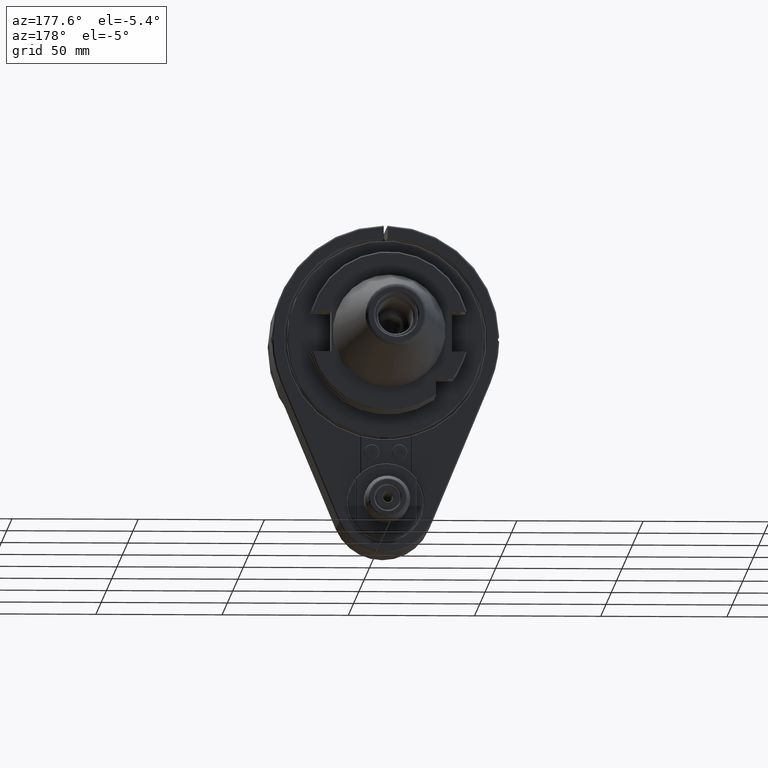
[diagram: clean part render]
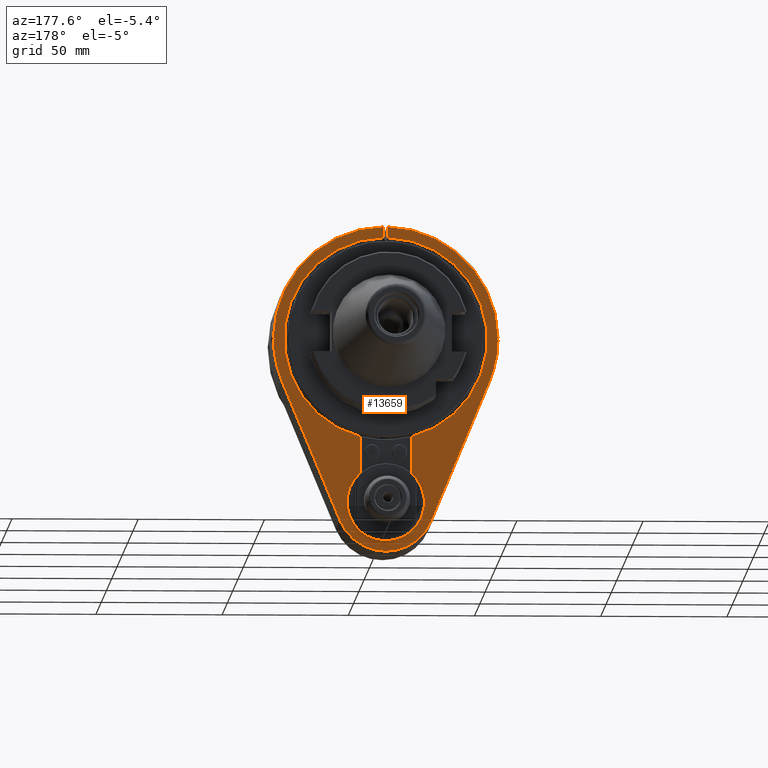
[diagram: same view with one face highlighted and labeled with its STEP entity id]
A machine part, auxiliary view. The second image highlights one B-rep face of the part: STEP entity #13659.
In plain terms, the highlighted planar face has unit normal (0, 1, 0).
Its self-contained STEP definition (entity closure, byte-faithful):
#783=CIRCLE('',#14669,44.49997422302);
#785=CIRCLE('',#14672,44.50060196107);
#786=CIRCLE('',#14673,44.49995139312);
#787=CIRCLE('',#14674,40.19996696382);
#788=CIRCLE('',#14675,15.34995496794);
#789=CIRCLE('',#14676,40.19996600925);
#790=CIRCLE('',#14677,44.5006095081);
#791=CIRCLE('',#14678,19.49970659949);
#1428=FACE_OUTER_BOUND('',#2241,.T.);
#2241=EDGE_LOOP('',(#9351,#9352,#9353,#9354,#9355,#9356,#9357,#9358,#9359,
#9360,#9361,#9362,#9363,#9364,#9365,#9366,#9367,#9368));
#3270=LINE('',#20657,#4469);
#3276=LINE('',#20695,#4475);
#3277=LINE('',#20697,#4476);
#3278=LINE('',#20701,#4477);
#3279=LINE('',#20705,#4478);
#3280=LINE('',#20709,#4479);
#3281=LINE('',#20712,#4480);
#3282=LINE('',#20714,#4481);
#3283=LINE('',#20718,#4482);
#3284=LINE('',#20721,#4483);
#4469=VECTOR('',#16404,10.);
#4475=VECTOR('',#16424,10.);
#4476=VECTOR('',#16425,10.);
#4477=VECTOR('',#16428,10.);
#4478=VECTOR('',#16431,10.);
#4479=VECTOR('',#16434,10.);
#4480=VECTOR('',#16437,10.);
#4481=VECTOR('',#16438,10.);
#4482=VECTOR('',#16441,10.);
#4483=VECTOR('',#16444,10.);
#5816=VERTEX_POINT('',#20651);
#5818=VERTEX_POINT('',#20656);
#5827=VERTEX_POINT('',#20683);
#5829=VERTEX_POINT('',#20691);
#5830=VERTEX_POINT('',#20692);
#5831=VERTEX_POINT('',#20694);
#5832=VERTEX_POINT('',#20696);
#5833=VERTEX_POINT('',#20698);
#5834=VERTEX_POINT('',#20700);
#5835=VERTEX_POINT('',#20702);
#5836=VERTEX_POINT('',#20704);
#5837=VERTEX_POINT('',#20706);
#5838=VERTEX_POINT('',#20708);
#5839=VERTEX_POINT('',#20711);
#5840=VERTEX_POINT('',#20713);
#5841=VERTEX_POINT('',#20715);
#5842=VERTEX_POINT('',#20717);
#5843=VERTEX_POINT('',#20719);
#7203=EDGE_CURVE('',#5818,#5816,#3270,.T.);
#7214=EDGE_CURVE('',#5827,#5816,#783,.T.);
#7217=EDGE_CURVE('',#5829,#5830,#785,.T.);
#7218=EDGE_CURVE('',#5831,#5829,#3276,.T.);
#7219=EDGE_CURVE('',#5832,#5831,#3277,.T.);
#7220=EDGE_CURVE('',#5833,#5832,#786,.T.);
#7221=EDGE_CURVE('',#5834,#5833,#3278,.T.);
#7222=EDGE_CURVE('',#5835,#5834,#787,.T.);
#7223=EDGE_CURVE('',#5836,#5835,#3279,.T.);
#7224=EDGE_CURVE('',#5837,#5836,#788,.T.);
#7225=EDGE_CURVE('',#5838,#5837,#3280,.T.);
#7226=EDGE_CURVE('',#5818,#5838,#789,.T.);
#7227=EDGE_CURVE('',#5839,#5827,#3281,.T.);
#7228=EDGE_CURVE('',#5840,#5839,#3282,.T.);
#7229=EDGE_CURVE('',#5841,#5840,#790,.T.);
#7230=EDGE_CURVE('',#5842,#5841,#3283,.T.);
#7231=EDGE_CURVE('',#5843,#5842,#791,.T.);
#7232=EDGE_CURVE('',#5830,#5843,#3284,.T.);
#9351=ORIENTED_EDGE('',*,*,#7217,.F.);
#9352=ORIENTED_EDGE('',*,*,#7218,.F.);
#9353=ORIENTED_EDGE('',*,*,#7219,.F.);
#9354=ORIENTED_EDGE('',*,*,#7220,.F.);
#9355=ORIENTED_EDGE('',*,*,#7221,.F.);
#9356=ORIENTED_EDGE('',*,*,#7222,.F.);
#9357=ORIENTED_EDGE('',*,*,#7223,.F.);
#9358=ORIENTED_EDGE('',*,*,#7224,.F.);
#9359=ORIENTED_EDGE('',*,*,#7225,.F.);
#9360=ORIENTED_EDGE('',*,*,#7226,.F.);
#9361=ORIENTED_EDGE('',*,*,#7203,.T.);
#9362=ORIENTED_EDGE('',*,*,#7214,.F.);
#9363=ORIENTED_EDGE('',*,*,#7227,.F.);
#9364=ORIENTED_EDGE('',*,*,#7228,.F.);
#9365=ORIENTED_EDGE('',*,*,#7229,.F.);
#9366=ORIENTED_EDGE('',*,*,#7230,.F.);
#9367=ORIENTED_EDGE('',*,*,#7231,.F.);
#9368=ORIENTED_EDGE('',*,*,#7232,.F.);
#13223=PLANE('',#14671);
#13659=ADVANCED_FACE('',(#1428),#13223,.T.);
#14669=AXIS2_PLACEMENT_3D('',#20684,#16416,#16417);
#14671=AXIS2_PLACEMENT_3D('',#20690,#16420,#16421);
#14672=AXIS2_PLACEMENT_3D('',#20693,#16422,#16423);
#14673=AXIS2_PLACEMENT_3D('',#20699,#16426,#16427);
#14674=AXIS2_PLACEMENT_3D('',#20703,#16429,#16430);
#14675=AXIS2_PLACEMENT_3D('',#20707,#16432,#16433);
#14676=AXIS2_PLACEMENT_3D('',#20710,#16435,#16436);
#14677=AXIS2_PLACEMENT_3D('',#20716,#16439,#16440);
#14678=AXIS2_PLACEMENT_3D('',#20720,#16442,#16443);
#16404=DIRECTION('',(0.,0.,1.));
#16416=DIRECTION('center_axis',(0.,-1.,0.));
#16417=DIRECTION('ref_axis',(0.999937579972993,0.,0.0111730102368899));
#16420=DIRECTION('center_axis',(0.,1.,0.));
#16421=DIRECTION('ref_axis',(1.,0.,0.));
#16422=DIRECTION('center_axis',(0.,-1.,0.));
#16423=DIRECTION('ref_axis',(-0.999937458228398,0.,-0.01118390055975));
#16424=DIRECTION('',(-0.707106781186597,0.,-0.707106781186498));
#16425=DIRECTION('',(0.707106781186548,0.,-0.707106781186548));
#16426=DIRECTION('center_axis',(0.,-1.,0.));
#16427=DIRECTION('ref_axis',(-0.0168539476534495,0.,0.99985796213687));
#16428=DIRECTION('',(0.,0.,1.));
#16429=DIRECTION('center_axis',(0.,1.,0.));
#16430=DIRECTION('ref_axis',(-0.253731472853505,0.,-0.967274697117417));
#16431=DIRECTION('',(0.,0.,1.));
#16432=DIRECTION('center_axis',(0.,1.,0.));
#16433=DIRECTION('ref_axis',(-0.664496173825118,0.,-0.74729166660132));
#16434=DIRECTION('',(0.,0.,-1.));
#16435=DIRECTION('center_axis',(0.,1.,0.));
#16436=DIRECTION('ref_axis',(0.0186567299968895,0.,0.999825948065874));
#16437=DIRECTION('',(0.707106781186548,0.,0.707106781186548));
#16438=DIRECTION('',(-0.707106781186597,0.,0.707106781186498));
#16439=DIRECTION('center_axis',(0.,-1.,0.));
#16440=DIRECTION('ref_axis',(0.9230769226415,0.,-0.3846153856604));
#16441=DIRECTION('',(0.384615384615375,0.,0.923076923076927));
#16442=DIRECTION('center_axis',(0.,-1.,0.));
#16443=DIRECTION('ref_axis',(0.,0.,-1.));
#16444=DIRECTION('',(0.384615384615375,0.,-0.923076923076927));
#20651=CARTESIAN_POINT('',(0.749999999978455,32.9999999996272,44.4936535466589));
#20656=CARTESIAN_POINT('',(0.750000000029131,32.9999999995471,40.1929691246732));
#20657=CARTESIAN_POINT('',(0.75,33.,11.65449913669));
#20683=CARTESIAN_POINT('',(44.497196560421,32.9999999984871,0.497196562890159));
#20684=CARTESIAN_POINT('Origin',(-3.67261766546E-13,33.,6.679101816145E-13));
#20690=CARTESIAN_POINT('Origin',(0.,33.,0.));
#20691=CARTESIAN_POINT('',(-44.4978171876307,33.0000000911052,-0.497817038986331));
#20692=CARTESIAN_POINT('',(-41.0772125627142,32.9998540376262,-17.1155052666226));
#20693=CARTESIAN_POINT('Origin',(-4.760636229593E-13,33.,0.));
#20694=CARTESIAN_POINT('',(-43.9999999999993,33.0000000005136,3.22546367951519E-13));
#20695=CARTESIAN_POINT('',(-32.9999999999985,33.,11.));
#20696=CARTESIAN_POINT('',(-44.4971739948912,32.999999992489,0.497174007139183));
#20697=CARTESIAN_POINT('',(-33.5,33.,-10.5));
#20698=CARTESIAN_POINT('',(-0.749999999975591,32.9999999995714,44.4936307136342));
#20699=CARTESIAN_POINT('Origin',(1.076472254677E-12,32.99999999999,-1.803002091991E-13));
#20700=CARTESIAN_POINT('',(-0.7499999994176,33.0000000002497,40.192970081119));
#20701=CARTESIAN_POINT('',(-0.75,33.,23.50149913669));
#20702=CARTESIAN_POINT('',(-10.2000000001101,33.0000000001551,-38.8844100370403));
#20703=CARTESIAN_POINT('Origin',(6.563638621584E-13,33.,-1.428190888878E-12));
#20704=CARTESIAN_POINT('',(-10.1999999996973,32.9999999999989,-53.5291187115762));
#20705=CARTESIAN_POINT('',(-10.2,33.,-23.087259558755));
#20706=CARTESIAN_POINT('',(10.1999999995047,33.0000000000003,-53.5291187111416));
#20707=CARTESIAN_POINT('Origin',(2.531308596145E-13,33.,-65.));
#20708=CARTESIAN_POINT('',(10.1999999993647,32.9999999996909,-38.8844090493058));
#20709=CARTESIAN_POINT('',(10.2,33.,-23.087259558755));
#20710=CARTESIAN_POINT('Origin',(3.046452079571E-13,33.,2.48689967516E-13));
#20711=CARTESIAN_POINT('',(43.9999999999993,33.0000000005209,3.5344623017531E-13));
#20712=CARTESIAN_POINT('',(33.5,33.,-10.5));
#20713=CARTESIAN_POINT('',(44.497824649052,33.0000000922471,-0.497824498542216));
#20714=CARTESIAN_POINT('',(32.9999999999985,33.,11.));
#20715=CARTESIAN_POINT('',(41.0772051091035,32.999999505033,-17.1155021788918));
#20716=CARTESIAN_POINT('Origin',(9.166001391305E-13,33.,1.321165499304E-13));
#20717=CARTESIAN_POINT('',(18.0002498721373,33.0000111993003,-72.4990188531515));
#20718=CARTESIAN_POINT('',(35.3076923076922,33.,-30.9615384615402));
#20719=CARTESIAN_POINT('',(-18.000237297124,32.999999043758,-72.4990530568679));
#20720=CARTESIAN_POINT('Origin',(-6.217247937901E-14,33.,-65.));
#20721=CARTESIAN_POINT('',(-35.3076923076922,33.,-30.9615384615402));